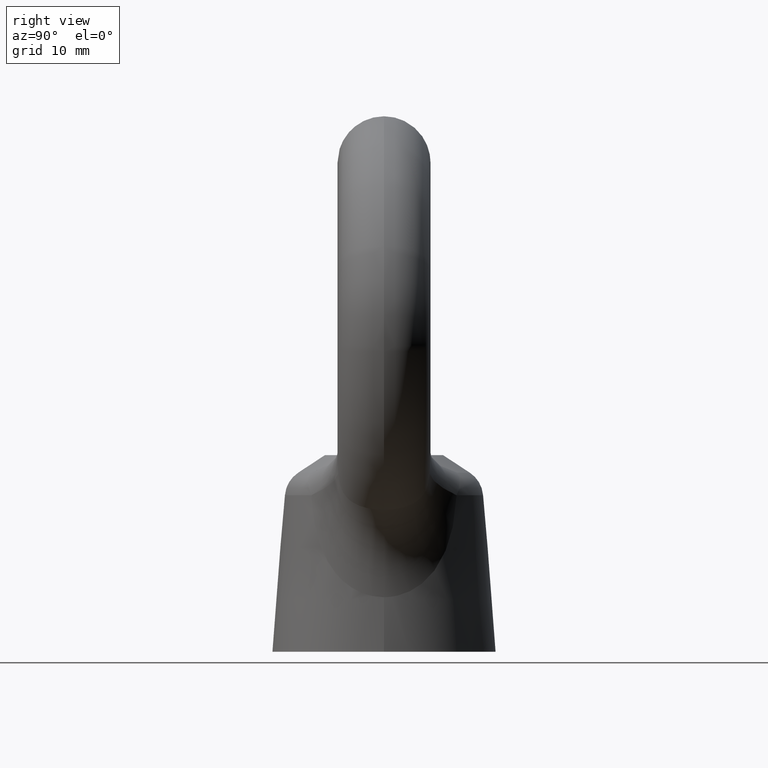
[diagram: clean part render]
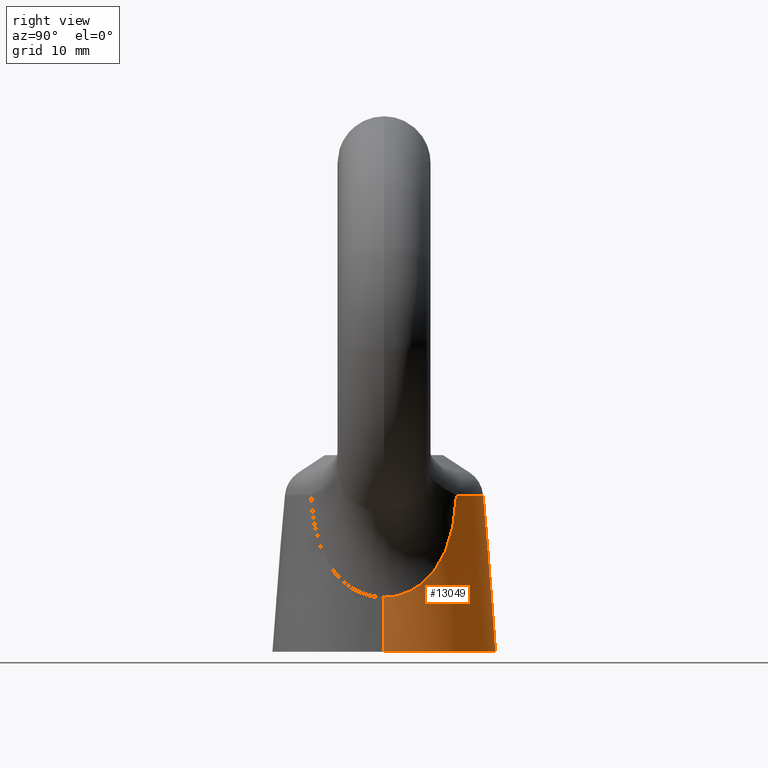
[diagram: same view with one face highlighted and labeled with its STEP entity id]
A machine part, right view. The second image highlights one B-rep face of the part: STEP entity #13049.
In plain terms, the highlighted conical surface has half-angle 4.351 deg.
Its self-contained STEP definition (entity closure, byte-faithful):
#13044 = VERTEX_POINT ( 'NONE', #13321 ) ;
#13045 = VERTEX_POINT ( 'NONE', #13320 ) ;
#13046 = ORIENTED_EDGE ( 'NONE', *, *, #13047, .T. ) ;
#13047 = EDGE_CURVE ( 'NONE', #13045, #13201, #13319, .T. ) ;
#13049 = ADVANCED_FACE ( 'NONE', ( #13342 ), #13341, .T. ) ;
#13053 = ORIENTED_EDGE ( 'NONE', *, *, #13054, .T. ) ;
#13054 = EDGE_CURVE ( 'NONE', #13152, #13055, #13331, .T. ) ;
#13055 = VERTEX_POINT ( 'NONE', #13359 ) ;
#13056 = ORIENTED_EDGE ( 'NONE', *, *, #13126, .T. ) ;
#13059 = ORIENTED_EDGE ( 'NONE', *, *, #13060, .T. ) ;
#13060 = EDGE_CURVE ( 'NONE', #13044, #13045, #13495, .T. ) ;
#13068 = EDGE_LOOP ( 'NONE', ( #13059, #13046, #13202, #13150, #13053, #13056 ) ) ;
#13103 = CARTESIAN_POINT ( 'NONE',  ( -11.31185178321081100, 8.215705035040160800, -28.57974928085272000 ) ) ;
#13104 = CARTESIAN_POINT ( 'NONE',  ( -11.59989421399508000, 7.897336944906785800, -29.26936569879104200 ) ) ;
#13105 = CARTESIAN_POINT ( 'NONE',  ( -11.74795486384412000, 7.723166379145701500, -29.60858218750222900 ) ) ;
#13106 = CARTESIAN_POINT ( 'NONE',  ( -12.19338322725104400, 7.159576785608701100, -30.59062415893201200 ) ) ;
#13107 = CARTESIAN_POINT ( 'NONE',  ( -12.49395726582314800, 6.728098887474748900, -31.20270228469307800 ) ) ;
#13108 = CARTESIAN_POINT ( 'NONE',  ( -13.07901292293696800, 5.722357401620533000, -32.33006417586919700 ) ) ;
#13109 = CARTESIAN_POINT ( 'NONE',  ( -13.36579204452695200, 5.139966717383890300, -32.84865894272249400 ) ) ;
#13110 = CARTESIAN_POINT ( 'NONE',  ( -13.73412363389774300, 4.181992904458699200, -33.49163842974157000 ) ) ;
#13111 = CARTESIAN_POINT ( 'NONE',  ( -13.84742142685074000, 3.847568171841520400, -33.68516369359690500 ) ) ;
#13112 = CARTESIAN_POINT ( 'NONE',  ( -14.05035282577658000, 3.144962643407882100, -34.02714675956087800 ) ) ;
#13113 = CARTESIAN_POINT ( 'NONE',  ( -14.14049520684094000, 2.774180635638238400, -34.17643498045198000 ) ) ;
#13114 = CARTESIAN_POINT ( 'NONE',  ( -14.28839983252728800, 2.005987183954808000, -34.41929120912891400 ) ) ;
#13115 = CARTESIAN_POINT ( 'NONE',  ( -14.34609441748237500, 1.608122309744203000, -34.51279681995105600 ) ) ;
#13116 = CARTESIAN_POINT ( 'NONE',  ( -14.42279363825856600, 0.8073231911410417800, -34.63674688877016900 ) ) ;
#13117 = CARTESIAN_POINT ( 'NONE',  ( -14.44212947466899300, 0.4047527916969487200, -34.66774851269086400 ) ) ;
#13118 = CARTESIAN_POINT ( 'NONE',  ( -14.44212947466842300, -1.781214476940803500E-011, -34.66774851268994700 ) ) ;
#13126 = EDGE_CURVE ( 'NONE', #13055, #13044, #13380, .T. ) ;
#13150 = ORIENTED_EDGE ( 'NONE', *, *, #13151, .F. ) ;
#13151 = EDGE_CURVE ( 'NONE', #13152, #13204, #13375, .T. ) ;
#13152 = VERTEX_POINT ( 'NONE', #13371 ) ;
#13201 = VERTEX_POINT ( 'NONE', #16930 ) ;
#13202 = ORIENTED_EDGE ( 'NONE', *, *, #13203, .F. ) ;
#13203 = EDGE_CURVE ( 'NONE', #13204, #13201, #16899, .T. ) ;
#13204 = VERTEX_POINT ( 'NONE', #16924 ) ;
#13317 = VECTOR ( 'NONE', #13347, 1000.000000000000100 ) ;
#13318 = CARTESIAN_POINT ( 'NONE',  ( 15.00000000000000000, 1.836909530733565900E-015, -42.00000000000000000 ) ) ;
#13319 = LINE ( 'NONE', #13318, #13317 ) ;
#13320 = CARTESIAN_POINT ( 'NONE',  ( 14.44212947466842300, 1.776239888956626400E-011, -34.66774851268994700 ) ) ;
#13321 = CARTESIAN_POINT ( 'NONE',  ( 9.180284082713130900, 9.760637840941839700, -20.96469496878929900 ) ) ;
#13331 = B_SPLINE_CURVE_WITH_KNOTS ( 'NONE', 3,
 ( #13118, #13117, #13116, #13115, #13114, #13113, #13112, #13111, #13110, #13109, #13108, #13107, #13106, #13105, #13104, #13103, #13363, #13365, #13364, #13362, #13361, #13360 ),
 .UNSPECIFIED., .F., .F.,
 ( 4, 2, 2, 2, 2, 2, 2, 2, 2, 2, 4 ),
 ( 0.01950934908826385000, 0.02072963805386145900, 0.02194992701945906700, 0.02317021598505668000, 0.02439050495065428800, 0.02683108288184949500, 0.02927166081304470600, 0.03049194977864231500, 0.03171223874423992300, 0.03415281667543515500, 0.03903397253782559700 ),
 .UNSPECIFIED. ) ;
#13336 = DIRECTION ( 'NONE',  ( -1.000000000000000000, 0.0000000000000000000, 0.0000000000000000000 ) ) ;
#13337 = DIRECTION ( 'NONE',  ( 0.0000000000000000000, 0.0000000000000000000, -1.000000000000000000 ) ) ;
#13338 = CARTESIAN_POINT ( 'NONE',  ( 0.0000000000000000000, 0.0000000000000000000, -42.00000000000000000 ) ) ;
#13339 = AXIS2_PLACEMENT_3D ( 'NONE', #13338, #13337, #13336 ) ;
#13341 = CONICAL_SURFACE ( 'NONE', #13339, 15.00000000000000000, 0.07593817178674543100 ) ;
#13342 = FACE_OUTER_BOUND ( 'NONE', #13068, .T. ) ;
#13347 = DIRECTION ( 'NONE',  ( 0.07586520857541637100, 9.290501645551477600E-018, -0.9971180823392024100 ) ) ;
#13359 = CARTESIAN_POINT ( 'NONE',  ( -9.180284082713130900, 9.760637840941839700, -20.96469496878929900 ) ) ;
#13360 = CARTESIAN_POINT ( 'NONE',  ( -9.180284082713130900, 9.760637840941839700, -20.96469496878929900 ) ) ;
#13361 = CARTESIAN_POINT ( 'NONE',  ( -9.449157529654108600, 9.675107437882772400, -22.56695898268930700 ) ) ;
#13362 = CARTESIAN_POINT ( 'NONE',  ( -9.811258133694821000, 9.493843747930997200, -24.13481507131610500 ) ) ;
#13363 = CARTESIAN_POINT ( 'NONE',  ( -11.17145135194290100, 8.360496311159538500, -28.22851096206918700 ) ) ;
#13364 = CARTESIAN_POINT ( 'NONE',  ( -10.50876141172327200, 8.971344426346114200, -26.41751154318328800 ) ) ;
#13365 = CARTESIAN_POINT ( 'NONE',  ( -10.76333505901934600, 8.757079076136413700, -27.15658943714645800 ) ) ;
#13371 = CARTESIAN_POINT ( 'NONE',  ( -14.44212947466842300, -1.781214476940803500E-011, -34.66774851268994700 ) ) ;
#13372 = DIRECTION ( 'NONE',  ( -0.07586520857541637100, 0.0000000000000000000, -0.9971180823392024100 ) ) ;
#13373 = VECTOR ( 'NONE', #13372, 1000.000000000000100 ) ;
#13374 = CARTESIAN_POINT ( 'NONE',  ( -15.00000000000000000, 0.0000000000000000000, -42.00000000000000000 ) ) ;
#13375 = LINE ( 'NONE', #13374, #13373 ) ;
#13376 = DIRECTION ( 'NONE',  ( 1.000000000000000000, 0.0000000000000000000, 0.0000000000000000000 ) ) ;
#13377 = DIRECTION ( 'NONE',  ( 0.0000000000000000000, 0.0000000000000000000, -1.000000000000000000 ) ) ;
#13378 = CARTESIAN_POINT ( 'NONE',  ( 0.0000000000000000000, 0.0000000000000000000, -20.96469496878929900 ) ) ;
#13379 = AXIS2_PLACEMENT_3D ( 'NONE', #13378, #13377, #13376 ) ;
#13380 = CIRCLE ( 'NONE', #13379, 13.39953980184924000 ) ;
#13437 = CARTESIAN_POINT ( 'NONE',  ( 14.44212947466842300, 1.776239888956626400E-011, -34.66774851268994700 ) ) ;
#13438 = CARTESIAN_POINT ( 'NONE',  ( 14.44212947466785800, 0.4044361484746931100, -34.66774851268904500 ) ) ;
#13439 = CARTESIAN_POINT ( 'NONE',  ( 14.42240434046879300, 0.8143176262512863400, -34.63612259388460800 ) ) ;
#13469 = CARTESIAN_POINT ( 'NONE',  ( 9.180284082713130900, 9.760637840941839700, -20.96469496878929900 ) ) ;
#13491 = CARTESIAN_POINT ( 'NONE',  ( 12.92876468837282100, 5.981016671676816700, -32.04068819193779700 ) ) ;
#13492 = CARTESIAN_POINT ( 'NONE',  ( 12.49038418085321700, 6.733476923712634000, -31.19552751687683700 ) ) ;
#13493 = CARTESIAN_POINT ( 'NONE',  ( 12.18375463359330300, 7.172687532367654700, -30.57029440491714600 ) ) ;
#13494 = CARTESIAN_POINT ( 'NONE',  ( 11.59298164557837700, 7.918296577346705300, -29.26598723930406400 ) ) ;
#13495 = B_SPLINE_CURVE_WITH_KNOTS ( 'NONE', 3,
 ( #13469, #13599, #13540, #13539, #13538, #13598, #13597, #13596, #13494, #13493, #13492, #13491, #13512, #13511, #13510, #13509, #13614, #13613, #13612, #13611, #13610, #13439, #13438, #13437 ),
 .UNSPECIFIED., .F., .F.,
 ( 4, 2, 2, 2, 2, 2, 2, 2, 2, 2, 2, 4 ),
 ( 3.469446951953614200E-018, 0.002438668636032979900, 0.004877337272065956400, 0.007316005908098933300, 0.009754674544131909300, 0.01219334318016488400, 0.01341267749818137800, 0.01463201181619787300, 0.01585134613421436800, 0.01707068045223086200, 0.01829001477024735600, 0.01950934908826385000 ),
 .UNSPECIFIED. ) ;
#13509 = CARTESIAN_POINT ( 'NONE',  ( 13.73066688601298700, 4.192142933519066100, -33.48572896347081200 ) ) ;
#13510 = CARTESIAN_POINT ( 'NONE',  ( 13.48121855039552500, 4.838549137240361700, -33.05002333132992500 ) ) ;
#13511 = CARTESIAN_POINT ( 'NONE',  ( 13.34772401597815500, 5.143531294500236900, -32.81238328782368500 ) ) ;
#13512 = CARTESIAN_POINT ( 'NONE',  ( 13.07177092022511600, 5.714080450193707300, -32.30818766832523900 ) ) ;
#13538 = CARTESIAN_POINT ( 'NONE',  ( 10.04433736295403500, 9.319199480539001700, -24.89743153584451100 ) ) ;
#13539 = CARTESIAN_POINT ( 'NONE',  ( 9.837358048583110900, 9.450876147445352900, -24.12677703600595800 ) ) ;
#13540 = CARTESIAN_POINT ( 'NONE',  ( 9.472584852460201400, 9.650277951098969400, -22.56138647775121300 ) ) ;
#13596 = CARTESIAN_POINT ( 'NONE',  ( 11.30601740713636400, 8.229785761720776800, -28.58205961552912200 ) ) ;
#13597 = CARTESIAN_POINT ( 'NONE',  ( 10.76352535830000300, 8.756841414477934300, -27.15697943711910200 ) ) ;
#13598 = CARTESIAN_POINT ( 'NONE',  ( 10.50687735252761200, 8.972800392968148100, -26.41151956013910500 ) ) ;
#13599 = CARTESIAN_POINT ( 'NONE',  ( 9.314656186404182100, 9.717893195387075500, -21.76544189514500300 ) ) ;
#13610 = CARTESIAN_POINT ( 'NONE',  ( 14.34479157466078400, 1.618730310850771100, -34.51068641804547400 ) ) ;
#13611 = CARTESIAN_POINT ( 'NONE',  ( 14.28669166874691700, 2.016053298919557000, -34.41650237985502500 ) ) ;
#13612 = CARTESIAN_POINT ( 'NONE',  ( 14.13940883152154600, 2.778606008612351600, -34.17463493105353900 ) ) ;
#13613 = CARTESIAN_POINT ( 'NONE',  ( 14.05038256567617300, 3.145064014927114700, -34.02720609316612200 ) ) ;
#13614 = CARTESIAN_POINT ( 'NONE',  ( 13.84632360693385400, 3.851163720843084000, -33.68330436701457100 ) ) ;
#16896 = DIRECTION ( 'NONE',  ( 0.0000000000000000000, 0.0000000000000000000, -1.000000000000000000 ) ) ;
#16897 = CARTESIAN_POINT ( 'NONE',  ( 0.0000000000000000000, 0.0000000000000000000, -42.00000000000000000 ) ) ;
#16898 = AXIS2_PLACEMENT_3D ( 'NONE', #16897, #16896, #16925 ) ;
#16899 = CIRCLE ( 'NONE', #16898, 15.00000000000000000 ) ;
#16924 = CARTESIAN_POINT ( 'NONE',  ( -15.00000000000000000, 0.0000000000000000000, -42.00000000000000000 ) ) ;
#16925 = DIRECTION ( 'NONE',  ( -1.000000000000000000, 0.0000000000000000000, 0.0000000000000000000 ) ) ;
#16930 = CARTESIAN_POINT ( 'NONE',  ( 15.00000000000000000, 1.836909530733565900E-015, -42.00000000000000000 ) ) ;